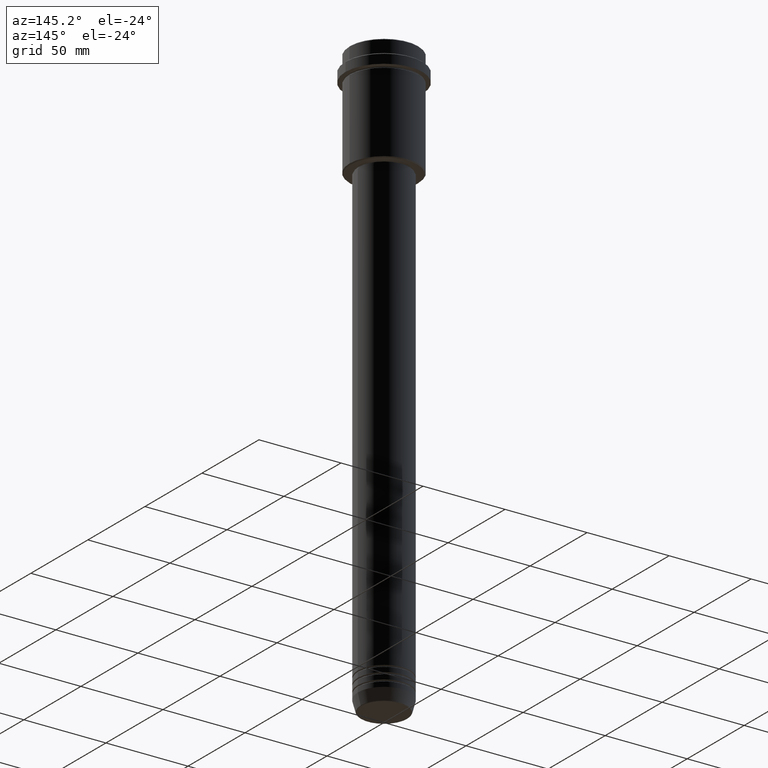
[diagram: clean part render]
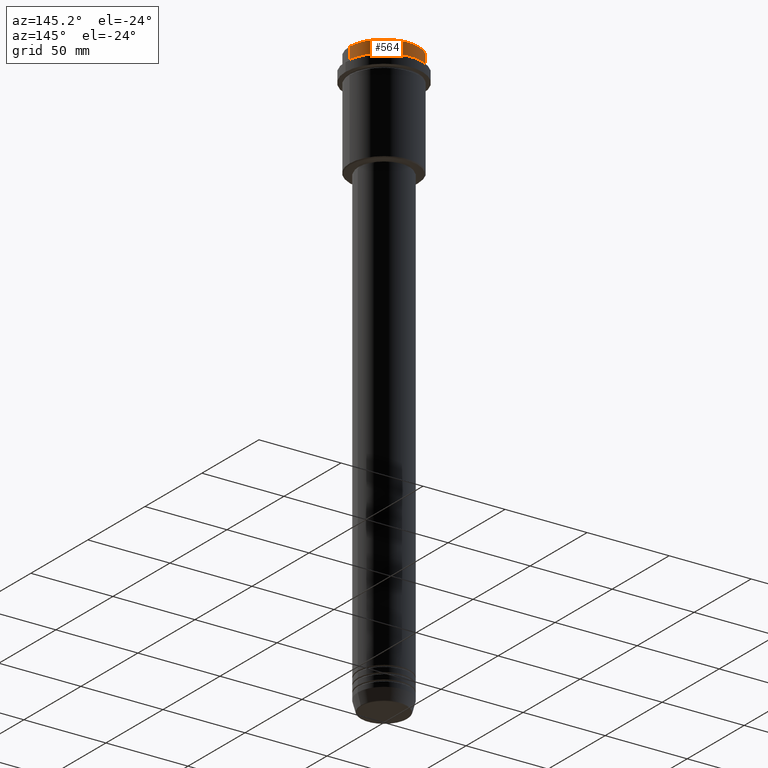
[diagram: same view with one face highlighted and labeled with its STEP entity id]
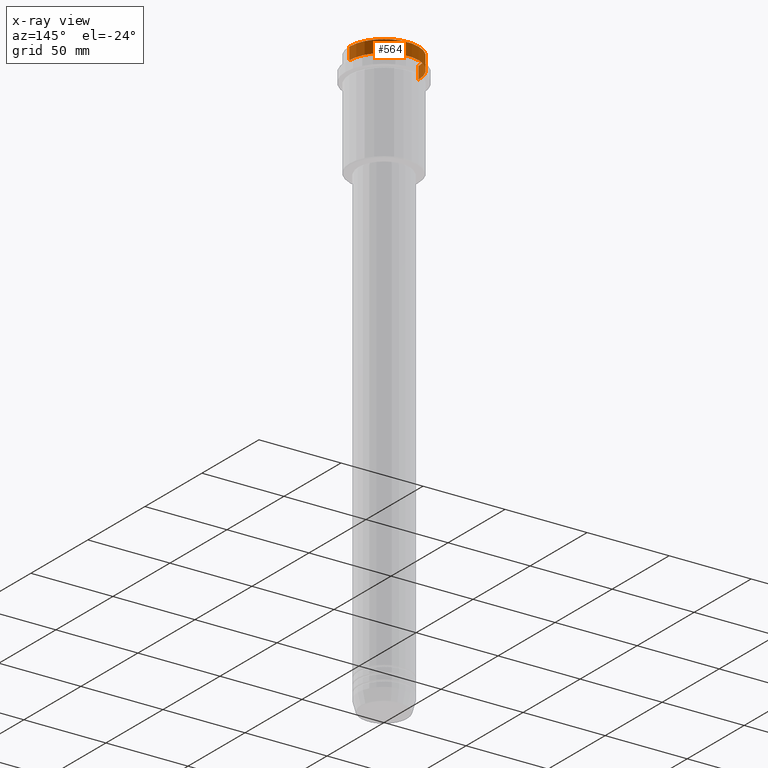
[diagram: x-ray of the same camera — body ghosted, the highlighted face saturated]
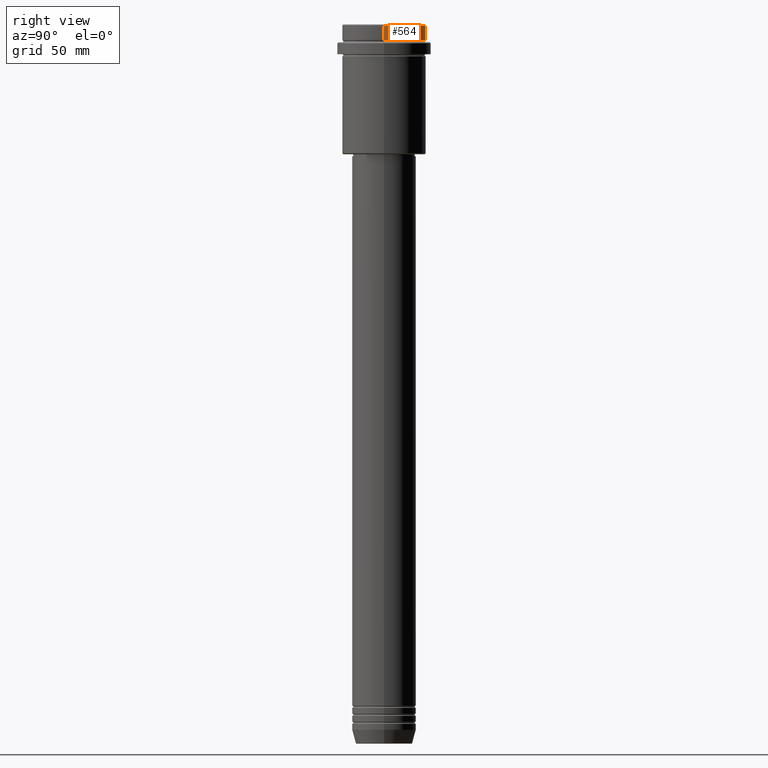
[diagram: same view with one face highlighted and labeled with its STEP entity id]
A machine part, auxiliary view. The second image highlights one B-rep face of the part: STEP entity #564.
The next image is the same camera in x-ray: the body ghosted, the highlighted face saturated — about 0% of this face is hidden behind the body in this view.
A second angle (right view) of the same face is appended — the face is thin or edge-on in the first view.
In plain terms, the highlighted cylindrical surface (partial cylindrical patch) has radius 21 mm, axis along (-0, -0, 1).
Its self-contained STEP definition (entity closure, byte-faithful):
#26 = CARTESIAN_POINT ( 'NONE',  ( 0.000000000000000000, 0.000000000000000000, -7.999999999999998224 ) ) ;
#46 = FACE_OUTER_BOUND ( 'NONE', #673, .T. ) ;
#163 = CARTESIAN_POINT ( 'NONE',  ( -21.00000000000000000, 2.571758278209441661E-15, 0.000000000000000000 ) ) ;
#165 = CARTESIAN_POINT ( 'NONE',  ( 21.00000000000000000, 0.000000000000000000, -0.4999999999999276135 ) ) ;
#267 = DIRECTION ( 'NONE',  ( 1.000000000000000000, 0.000000000000000000, 0.000000000000000000 ) ) ;
#328 = CARTESIAN_POINT ( 'NONE',  ( 21.00000000000000000, 0.000000000000000000, -7.999999999999998224 ) ) ;
#336 = VERTEX_POINT ( 'NONE', #1052 ) ;
#401 = AXIS2_PLACEMENT_3D ( 'NONE', #1121, #692, #1136 ) ;
#488 = LINE ( 'NONE', #580, #1360 ) ;
#492 = ORIENTED_EDGE ( 'NONE', *, *, #651, .F. ) ;
#534 = EDGE_CURVE ( 'NONE', #835, #597, #724, .T. ) ;
#564 = ADVANCED_FACE ( 'NONE', ( #46 ), #1021, .T. ) ;
#580 = CARTESIAN_POINT ( 'NONE',  ( 21.00000000000000000, 0.000000000000000000, 0.000000000000000000 ) ) ;
#597 = VERTEX_POINT ( 'NONE', #165 ) ;
#615 = CIRCLE ( 'NONE', #971, 21.00000000000000000 ) ;
#638 = ORIENTED_EDGE ( 'NONE', *, *, #534, .T. ) ;
#651 = EDGE_CURVE ( 'NONE', #1259, #597, #488, .T. ) ;
#673 = EDGE_LOOP ( 'NONE', ( #1291, #1090, #638, #492 ) ) ;
#692 = DIRECTION ( 'NONE',  ( 0.000000000000000000, 0.000000000000000000, -1.000000000000000000 ) ) ;
#696 = DIRECTION ( 'NONE',  ( -0.000000000000000000, -0.000000000000000000, 1.000000000000000000 ) ) ;
#724 = CIRCLE ( 'NONE', #401, 21.00000000000000000 ) ;
#829 = DIRECTION ( 'NONE',  ( -0.000000000000000000, -0.000000000000000000, 1.000000000000000000 ) ) ;
#835 = VERTEX_POINT ( 'NONE', #1072 ) ;
#843 = VECTOR ( 'NONE', #829, 1000.000000000000000 ) ;
#923 = DIRECTION ( 'NONE',  ( -0.000000000000000000, -0.000000000000000000, 1.000000000000000000 ) ) ;
#930 = LINE ( 'NONE', #163, #843 ) ;
#971 = AXIS2_PLACEMENT_3D ( 'NONE', #26, #1235, #267 ) ;
#1021 = CYLINDRICAL_SURFACE ( 'NONE', #1076, 21.00000000000000000 ) ;
#1052 = CARTESIAN_POINT ( 'NONE',  ( -21.00000000000000000, 2.571758278209441661E-15, -7.999999999999998224 ) ) ;
#1072 = CARTESIAN_POINT ( 'NONE',  ( -21.00000000000000000, 2.571758278209441661E-15, -0.4999999999999276135 ) ) ;
#1074 = EDGE_CURVE ( 'NONE', #1259, #336, #615, .T. ) ;
#1076 = AXIS2_PLACEMENT_3D ( 'NONE', #1230, #696, #1216 ) ;
#1090 = ORIENTED_EDGE ( 'NONE', *, *, #1158, .T. ) ;
#1121 = CARTESIAN_POINT ( 'NONE',  ( 0.000000000000000000, 0.000000000000000000, -0.4999999999999276135 ) ) ;
#1136 = DIRECTION ( 'NONE',  ( 1.000000000000000000, 0.000000000000000000, 0.000000000000000000 ) ) ;
#1158 = EDGE_CURVE ( 'NONE', #336, #835, #930, .T. ) ;
#1216 = DIRECTION ( 'NONE',  ( 1.000000000000000000, 0.000000000000000000, 0.000000000000000000 ) ) ;
#1230 = CARTESIAN_POINT ( 'NONE',  ( 0.000000000000000000, 0.000000000000000000, 0.000000000000000000 ) ) ;
#1235 = DIRECTION ( 'NONE',  ( -0.000000000000000000, -0.000000000000000000, 1.000000000000000000 ) ) ;
#1259 = VERTEX_POINT ( 'NONE', #328 ) ;
#1291 = ORIENTED_EDGE ( 'NONE', *, *, #1074, .T. ) ;
#1360 = VECTOR ( 'NONE', #923, 1000.000000000000000 ) ;